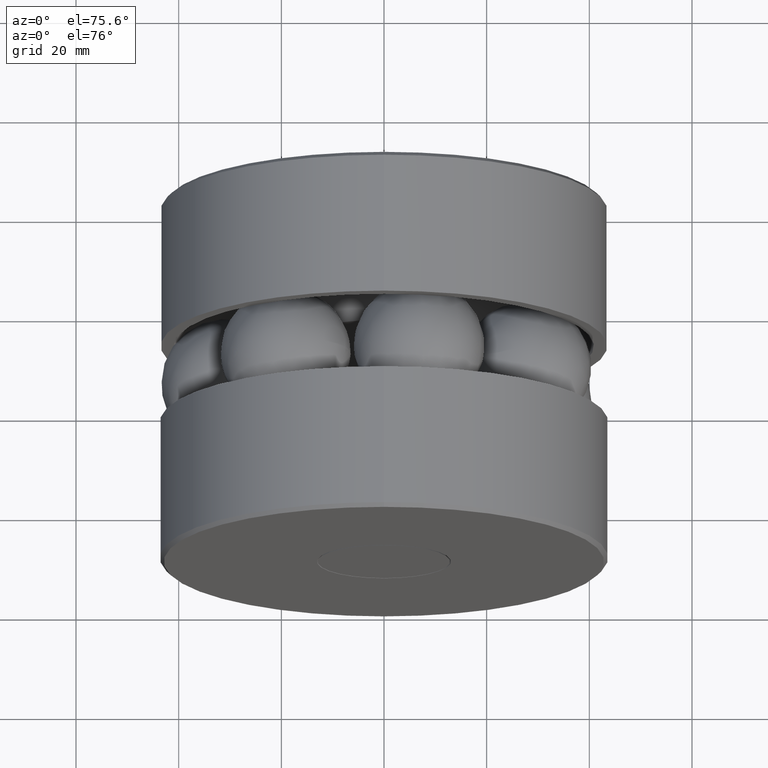
[diagram: clean part render]
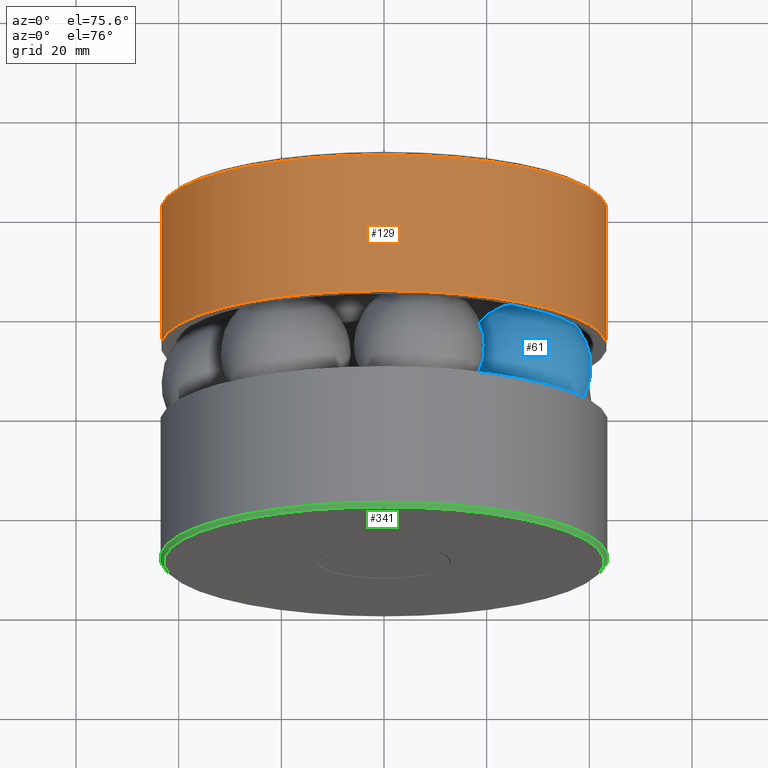
[diagram: same view with three faces highlighted in distinct colors, each labeled with its STEP entity id]
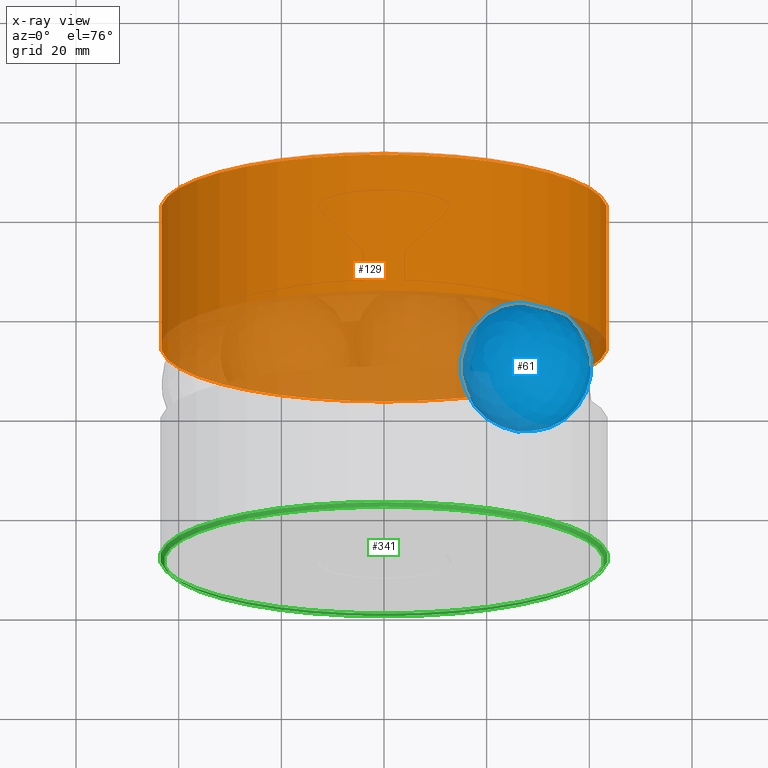
[diagram: x-ray of the same camera — body ghosted, the three highlighted faces saturated]
A machine part, auxiliary view with three faces highlighted in distinct colors.
The next image is the same camera in x-ray (body ghosted, the three faces saturated) — at least one of them is partly hidden behind the body in this view.
Their STEP definitions:

[orange] entity #129 — the highlighted cylindrical surface (bore or boss wall) has radius 43.4848 mm, axis along (-0, 1, -0).
#19 = VERTEX_POINT ( 'NONE', #35 ) ;
#20 = FACE_OUTER_BOUND ( 'NONE', #41, .T. ) ;
#31 = DIRECTION ( 'NONE',  ( -0.0000000000000000000, 1.000000000000000000, -0.0000000000000000000 ) ) ;
#32 = CARTESIAN_POINT ( 'NONE',  ( 0.0000000000000000000, 0.0000000000000000000, 0.0000000000000000000 ) ) ;
#35 = CARTESIAN_POINT ( 'NONE',  ( 0.0000000000000000000, 1.706500000000000600, 1.712000000000000200 ) ) ;
#41 = EDGE_LOOP ( 'NONE', ( #87 ) ) ;
#75 = CARTESIAN_POINT ( 'NONE',  ( 0.0000000000000000000, 2.782999999999999900, 1.712000000000000200 ) ) ;
#79 = DIRECTION ( 'NONE',  ( 0.0000000000000000000, 0.0000000000000000000, 1.000000000000000000 ) ) ;
#87 = ORIENTED_EDGE ( 'NONE', *, *, #277, .F. ) ;
#89 = ORIENTED_EDGE ( 'NONE', *, *, #508, .T. ) ;
#107 = CIRCLE ( 'NONE', #136, 1.712000000000000200 ) ;
#113 = CIRCLE ( 'NONE', #270, 1.712000000000000200 ) ;
#129 = ADVANCED_FACE ( 'NONE', ( #271, #20 ), #462, .T. ) ;
#136 = AXIS2_PLACEMENT_3D ( 'NONE', #448, #440, #437 ) ;
#138 = DIRECTION ( 'NONE',  ( 0.0000000000000000000, 0.0000000000000000000, 1.000000000000000000 ) ) ;
#142 = DIRECTION ( 'NONE',  ( -0.0000000000000000000, 1.000000000000000000, -0.0000000000000000000 ) ) ;
#143 = CARTESIAN_POINT ( 'NONE',  ( 0.0000000000000000000, 1.706500000000000600, 0.0000000000000000000 ) ) ;
#227 = EDGE_LOOP ( 'NONE', ( #89 ) ) ;
#270 = AXIS2_PLACEMENT_3D ( 'NONE', #143, #142, #138 ) ;
#271 = FACE_OUTER_BOUND ( 'NONE', #227, .T. ) ;
#277 = EDGE_CURVE ( 'NONE', #500, #500, #107, .T. ) ;
#437 = DIRECTION ( 'NONE',  ( 0.0000000000000000000, 0.0000000000000000000, 1.000000000000000000 ) ) ;
#440 = DIRECTION ( 'NONE',  ( -0.0000000000000000000, 1.000000000000000000, -0.0000000000000000000 ) ) ;
#448 = CARTESIAN_POINT ( 'NONE',  ( 0.0000000000000000000, 2.782999999999999900, 0.0000000000000000000 ) ) ;
#453 = AXIS2_PLACEMENT_3D ( 'NONE', #32, #31, #79 ) ;
#462 = CYLINDRICAL_SURFACE ( 'NONE', #453, 1.712000000000000200 ) ;
#500 = VERTEX_POINT ( 'NONE', #75 ) ;
#508 = EDGE_CURVE ( 'NONE', #19, #19, #113, .T. ) ;

[blue] entity #61 — the highlighted spherical surface has radius 12.7 mm.
#61 = ADVANCED_FACE ( 'NONE', ( ), #84, .T. ) ;
#84 = SPHERICAL_SURFACE ( 'NONE', #234, 0.5000000000000001100 ) ;
#141 = DIRECTION ( 'NONE',  ( -0.9009688679024219200, 0.0000000000000000000, -0.4338837391175524600 ) ) ;
#201 = DIRECTION ( 'NONE',  ( -0.4338837391175524600, 0.0000000000000000000, 0.9009688679024218100 ) ) ;
#234 = AXIS2_PLACEMENT_3D ( 'NONE', #323, #201, #141 ) ;
#323 = CARTESIAN_POINT ( 'NONE',  ( 1.090172330161930800, 1.406500000000000500, 0.5249993243322389500 ) ) ;

[green] entity #341 — the highlighted conical surface has half-angle 45 deg.
#38 = CARTESIAN_POINT ( 'NONE',  ( 0.0000000000000000000, 0.03000000000000010600, 1.719000000000000100 ) ) ;
#85 = CARTESIAN_POINT ( 'NONE',  ( 0.0000000000000000000, -1.619248371186480700E-016, 1.689000000000000300 ) ) ;
#94 = FACE_OUTER_BOUND ( 'NONE', #236, .T. ) ;
#137 = CIRCLE ( 'NONE', #549, 1.719000000000000100 ) ;
#139 = EDGE_LOOP ( 'NONE', ( #466 ) ) ;
#197 = EDGE_CURVE ( 'NONE', #297, #297, #245, .T. ) ;
#219 = DIRECTION ( 'NONE',  ( 0.0000000000000000000, 0.0000000000000000000, 1.000000000000000000 ) ) ;
#223 = DIRECTION ( 'NONE',  ( -0.0000000000000000000, 1.000000000000000000, -0.0000000000000000000 ) ) ;
#226 = CARTESIAN_POINT ( 'NONE',  ( 0.0000000000000000000, 0.03000000000000010600, 0.0000000000000000000 ) ) ;
#236 = EDGE_LOOP ( 'NONE', ( #502 ) ) ;
#245 = CIRCLE ( 'NONE', #510, 1.689000000000000300 ) ;
#269 = VERTEX_POINT ( 'NONE', #38 ) ;
#275 = CONICAL_SURFACE ( 'NONE', #309, 1.719000000000000100, 0.7853981633974430600 ) ;
#297 = VERTEX_POINT ( 'NONE', #85 ) ;
#309 = AXIS2_PLACEMENT_3D ( 'NONE', #373, #371, #376 ) ;
#341 = ADVANCED_FACE ( 'NONE', ( #519, #94 ), #275, .T. ) ;
#371 = DIRECTION ( 'NONE',  ( -0.0000000000000000000, 1.000000000000000000, -0.0000000000000000000 ) ) ;
#373 = CARTESIAN_POINT ( 'NONE',  ( 0.0000000000000000000, 0.03000000000000010600, 0.0000000000000000000 ) ) ;
#376 = DIRECTION ( 'NONE',  ( 0.0000000000000000000, 0.0000000000000000000, 1.000000000000000000 ) ) ;
#466 = ORIENTED_EDGE ( 'NONE', *, *, #197, .T. ) ;
#468 = EDGE_CURVE ( 'NONE', #269, #269, #137, .T. ) ;
#502 = ORIENTED_EDGE ( 'NONE', *, *, #468, .F. ) ;
#503 = DIRECTION ( 'NONE',  ( 0.0000000000000000000, 0.0000000000000000000, 1.000000000000000000 ) ) ;
#505 = DIRECTION ( 'NONE',  ( -0.0000000000000000000, 1.000000000000000000, -0.0000000000000000000 ) ) ;
#510 = AXIS2_PLACEMENT_3D ( 'NONE', #514, #505, #503 ) ;
#514 = CARTESIAN_POINT ( 'NONE',  ( 0.0000000000000000000, -1.619248371186480700E-016, 0.0000000000000000000 ) ) ;
#519 = FACE_BOUND ( 'NONE', #139, .T. ) ;
#549 = AXIS2_PLACEMENT_3D ( 'NONE', #226, #223, #219 ) ;